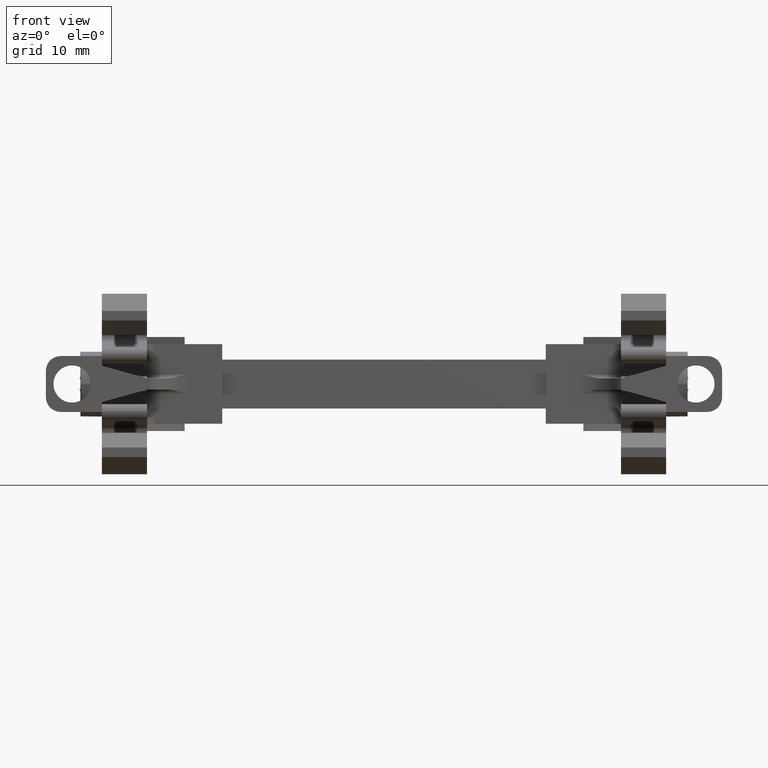
[diagram: clean part render]
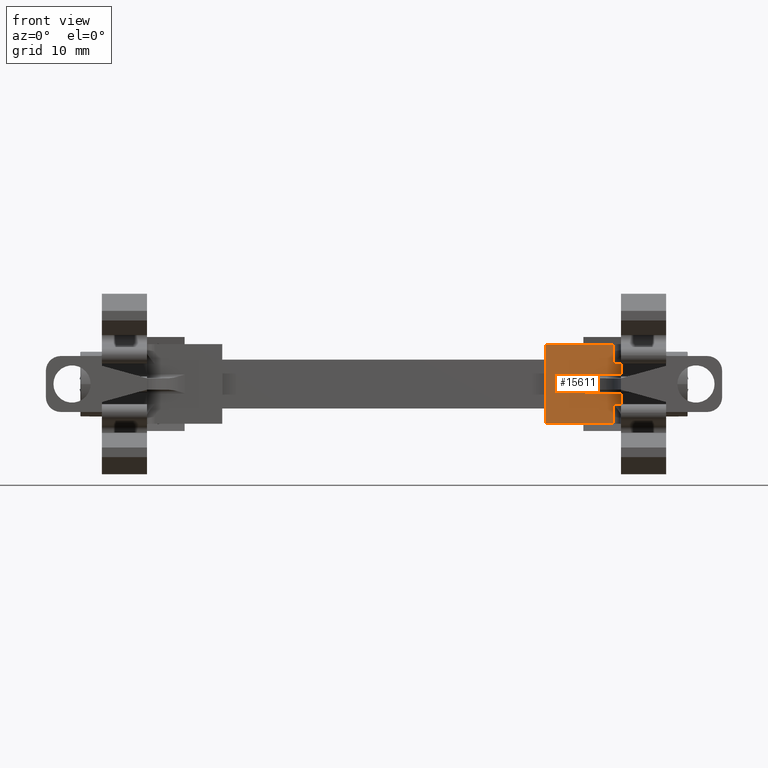
[diagram: same view with one face highlighted and labeled with its STEP entity id]
A machine part, front view. The second image highlights one B-rep face of the part: STEP entity #15611.
In plain terms, the highlighted planar face has unit normal (0, -1, -0).
Its self-contained STEP definition (entity closure, byte-faithful):
#572 = AXIS2_PLACEMENT_3D ( 'NONE', #14630, #14640, #14647 ) ;
#3373 = CARTESIAN_POINT ( 'NONE',  ( -60.82964581438650200, -100.8039706742539000, 210.6016037692869800 ) ) ;
#3389 = DIRECTION ( 'NONE',  ( -0.0000000000000000000, -1.387778780781406000E-013, 1.000000000000000000 ) ) ;
#3400 = LINE ( 'NONE', #3373, #13991 ) ;
#3806 = VERTEX_POINT ( 'NONE', #16459 ) ;
#3864 = VERTEX_POINT ( 'NONE', #16534 ) ;
#3876 = VERTEX_POINT ( 'NONE', #16560 ) ;
#3892 = VERTEX_POINT ( 'NONE', #16590 ) ;
#3896 = VERTEX_POINT ( 'NONE', #16570 ) ;
#3907 = VERTEX_POINT ( 'NONE', #16595 ) ;
#3909 = VERTEX_POINT ( 'NONE', #16585 ) ;
#3910 = VERTEX_POINT ( 'NONE', #16580 ) ;
#3932 = VERTEX_POINT ( 'NONE', #16639 ) ;
#3953 = VERTEX_POINT ( 'NONE', #16642 ) ;
#3976 = VERTEX_POINT ( 'NONE', #16617 ) ;
#4019 = VERTEX_POINT ( 'NONE', #16681 ) ;
#4808 = ORIENTED_EDGE ( 'NONE', *, *, #10296, .T. ) ;
#4819 = ORIENTED_EDGE ( 'NONE', *, *, #10349, .T. ) ;
#4825 = ORIENTED_EDGE ( 'NONE', *, *, #10422, .F. ) ;
#4830 = ORIENTED_EDGE ( 'NONE', *, *, #10875, .T. ) ;
#4854 = ORIENTED_EDGE ( 'NONE', *, *, #10364, .T. ) ;
#4860 = ORIENTED_EDGE ( 'NONE', *, *, #10403, .T. ) ;
#4875 = ORIENTED_EDGE ( 'NONE', *, *, #10375, .T. ) ;
#4882 = ORIENTED_EDGE ( 'NONE', *, *, #16066, .T. ) ;
#4886 = ORIENTED_EDGE ( 'NONE', *, *, #10150, .F. ) ;
#4887 = ORIENTED_EDGE ( 'NONE', *, *, #10178, .T. ) ;
#4889 = ORIENTED_EDGE ( 'NONE', *, *, #10410, .F. ) ;
#4897 = ORIENTED_EDGE ( 'NONE', *, *, #16053, .T. ) ;
#8441 = EDGE_LOOP ( 'NONE', ( #4887, #4819, #4897, #4830, #4825, #4889, #4860, #4875, #4882, #4886, #4854, #4808 ) ) ;
#9386 = LINE ( 'NONE', #9389, #13531 ) ;
#9389 = CARTESIAN_POINT ( 'NONE',  ( -64.86164581438649200, -100.8039706742539600, 210.6016037692869800 ) ) ;
#9434 = DIRECTION ( 'NONE',  ( -0.0000000000000000000, -1.387778780781406000E-013, 1.000000000000000000 ) ) ;
#9654 = CARTESIAN_POINT ( 'NONE',  ( -59.82164581438640000, -100.8039706742539000, 210.6016037692869800 ) ) ;
#9656 = DIRECTION ( 'NONE',  ( -0.0000000000000000000, -1.387778780781406000E-013, 1.000000000000000000 ) ) ;
#9672 = LINE ( 'NONE', #9654, #13615 ) ;
#9789 = CARTESIAN_POINT ( 'NONE',  ( -52.76564581438649500, -100.8039706742544000, 214.7275482728040000 ) ) ;
#9792 = DIRECTION ( 'NONE',  ( -1.000000000000000000, -1.100161628464522800E-014, -1.526780963412981600E-027 ) ) ;
#9840 = LINE ( 'NONE', #9789, #13629 ) ;
#9860 = DIRECTION ( 'NONE',  ( -0.0000000000000000000, -1.387778780781406000E-013, 1.000000000000000000 ) ) ;
#9870 = LINE ( 'NONE', #9877, #13606 ) ;
#9877 = CARTESIAN_POINT ( 'NONE',  ( -60.82964581438650200, -100.8039706742539000, 210.6016037692869800 ) ) ;
#10150 = EDGE_CURVE ( 'NONE', #3896, #3892, #22138, .T. ) ;
#10178 = EDGE_CURVE ( 'NONE', #3864, #3909, #22156, .T. ) ;
#10296 = EDGE_CURVE ( 'NONE', #3932, #3864, #9386, .T. ) ;
#10349 = EDGE_CURVE ( 'NONE', #3909, #3876, #9672, .T. ) ;
#10364 = EDGE_CURVE ( 'NONE', #3896, #3932, #9840, .T. ) ;
#10375 = EDGE_CURVE ( 'NONE', #3953, #3910, #9870, .T. ) ;
#10403 = EDGE_CURVE ( 'NONE', #3976, #3953, #13034, .T. ) ;
#10410 = EDGE_CURVE ( 'NONE', #3976, #4019, #13018, .T. ) ;
#10422 = EDGE_CURVE ( 'NONE', #4019, #3907, #13036, .T. ) ;
#10875 = EDGE_CURVE ( 'NONE', #3806, #3907, #3400, .T. ) ;
#13016 = CARTESIAN_POINT ( 'NONE',  ( -69.82164581438647100, -100.8039706742540000, 219.3152414071310000 ) ) ;
#13018 = LINE ( 'NONE', #13016, #13612 ) ;
#13021 = DIRECTION ( 'NONE',  ( -2.352285033424550400E-015, -2.587893732985000900E-029, 1.000000000000000000 ) ) ;
#13028 = CARTESIAN_POINT ( 'NONE',  ( -137.4477258143864200, -100.8039706742540000, 221.2795482728011500 ) ) ;
#13034 = LINE ( 'NONE', #13045, #13597 ) ;
#13035 = DIRECTION ( 'NONE',  ( 1.000000000000000000, 1.100161628464522800E-014, 1.526780963412981600E-027 ) ) ;
#13036 = LINE ( 'NONE', #13028, #13600 ) ;
#13039 = DIRECTION ( 'NONE',  ( 1.000000000000000000, 3.254029360473868200E-028, 2.352285033426070200E-015 ) ) ;
#13045 = CARTESIAN_POINT ( 'NONE',  ( -52.76564581438649500, -100.8039706742538300, 210.6955482728040200 ) ) ;
#13489 = VECTOR ( 'NONE', #22140, 1000.000000000000000 ) ;
#13495 = VECTOR ( 'NONE', #22234, 1000.000000000000000 ) ;
#13531 = VECTOR ( 'NONE', #9434, 1000.000000000000000 ) ;
#13597 = VECTOR ( 'NONE', #13035, 1000.000000000000000 ) ;
#13600 = VECTOR ( 'NONE', #13039, 1000.000000000000000 ) ;
#13606 = VECTOR ( 'NONE', #9860, 1000.000000000000000 ) ;
#13612 = VECTOR ( 'NONE', #13021, 1000.000000000000000 ) ;
#13615 = VECTOR ( 'NONE', #9656, 1000.000000000000000 ) ;
#13629 = VECTOR ( 'NONE', #9792, 1000.000000000000000 ) ;
#13991 = VECTOR ( 'NONE', #3389, 1000.000000000000000 ) ;
#14627 = FACE_OUTER_BOUND ( 'NONE', #8441, .T. ) ;
#14629 = PLANE ( 'NONE',  #572 ) ;
#14630 = CARTESIAN_POINT ( 'NONE',  ( -52.76564581438649500, -100.8039706742538300, 210.6016037692869800 ) ) ;
#14640 = DIRECTION ( 'NONE',  ( 1.100161628464522800E-014, -1.000000000000000000, -1.387778780781406000E-013 ) ) ;
#14647 = DIRECTION ( 'NONE',  ( 0.0000000000000000000, 1.387778780781406000E-013, -1.000000000000000000 ) ) ;
#15611 = ADVANCED_FACE ( 'NONE', ( #14627 ), #14629, .T. ) ;
#16053 = EDGE_CURVE ( 'NONE', #3876, #3806, #22142, .T. ) ;
#16066 = EDGE_CURVE ( 'NONE', #3910, #3892, #22196, .T. ) ;
#16459 = CARTESIAN_POINT ( 'NONE',  ( -60.82964581438643800, -100.8039706742545900, 218.6645135719745400 ) ) ;
#16534 = CARTESIAN_POINT ( 'NONE',  ( -64.86164581438647800, -100.8039706742548700, 217.2475482728011100 ) ) ;
#16560 = CARTESIAN_POINT ( 'NONE',  ( -59.82164581438645700, -100.8039706742550300, 218.6645135719746800 ) ) ;
#16570 = CARTESIAN_POINT ( 'NONE',  ( -59.82164581438644300, -100.8039706742544600, 214.7275482728040000 ) ) ;
#16580 = CARTESIAN_POINT ( 'NONE',  ( -60.82964581438651000, -100.8039706742542900, 213.3105829736306000 ) ) ;
#16585 = CARTESIAN_POINT ( 'NONE',  ( -59.82164581438640000, -100.8039706742548300, 217.2475482728011400 ) ) ;
#16590 = CARTESIAN_POINT ( 'NONE',  ( -59.82164581438640000, -100.8039706742543700, 213.3105829736304900 ) ) ;
#16595 = CARTESIAN_POINT ( 'NONE',  ( -60.82964581438650200, -100.8039706742547000, 221.2795482728014900 ) ) ;
#16617 = CARTESIAN_POINT ( 'NONE',  ( -69.82164581438645700, -100.8039706742540200, 210.6955482728040200 ) ) ;
#16639 = CARTESIAN_POINT ( 'NONE',  ( -64.86164581438649200, -100.8039706742545400, 214.7275482728040300 ) ) ;
#16642 = CARTESIAN_POINT ( 'NONE',  ( -60.82964581438650200, -100.8039706742539200, 210.6955482728037900 ) ) ;
#16681 = CARTESIAN_POINT ( 'NONE',  ( -69.82164581438648600, -100.8039706742540000, 221.2795482728012400 ) ) ;
#22131 = CARTESIAN_POINT ( 'NONE',  ( -59.82164581438649300, -100.8039706742544300, 227.9935498338489900 ) ) ;
#22138 = LINE ( 'NONE', #22131, #13489 ) ;
#22140 = DIRECTION ( 'NONE',  ( 2.352285033423030300E-015, -0.0000000000000000000, -1.000000000000000000 ) ) ;
#22142 = LINE ( 'NONE', #22181, #23295 ) ;
#22143 = DIRECTION ( 'NONE',  ( -1.000000000000000000, -1.100161628464522800E-014, -1.526780963412981600E-027 ) ) ;
#22156 = LINE ( 'NONE', #22184, #13495 ) ;
#22181 = CARTESIAN_POINT ( 'NONE',  ( -52.76564581438649500, -100.8039706742549600, 218.6645135719746500 ) ) ;
#22184 = CARTESIAN_POINT ( 'NONE',  ( -52.76564581438649500, -100.8039706742547400, 217.2475482728011100 ) ) ;
#22196 = LINE ( 'NONE', #22203, #23289 ) ;
#22203 = CARTESIAN_POINT ( 'NONE',  ( -52.76564581438649500, -100.8039706742542000, 213.3105829736305500 ) ) ;
#22209 = DIRECTION ( 'NONE',  ( 1.000000000000000000, 1.100161628464522800E-014, 1.526780963412981600E-027 ) ) ;
#22234 = DIRECTION ( 'NONE',  ( 1.000000000000000000, 1.100161628464522800E-014, 1.526780963412981600E-027 ) ) ;
#23289 = VECTOR ( 'NONE', #22209, 1000.000000000000000 ) ;
#23295 = VECTOR ( 'NONE', #22143, 1000.000000000000000 ) ;